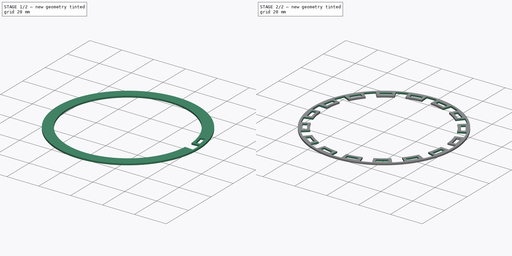
[diagram: build sequence overview — one tinted view per stage of 2, left to right]
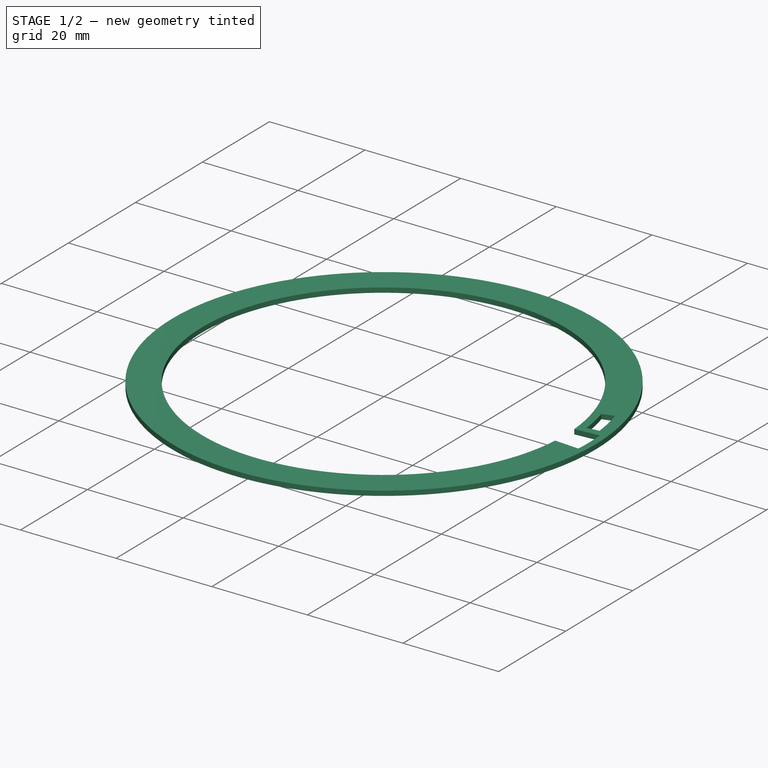
[diagram: stage 1 of 2 — iso view after this stage's code; geometry added in this stage tinted green]
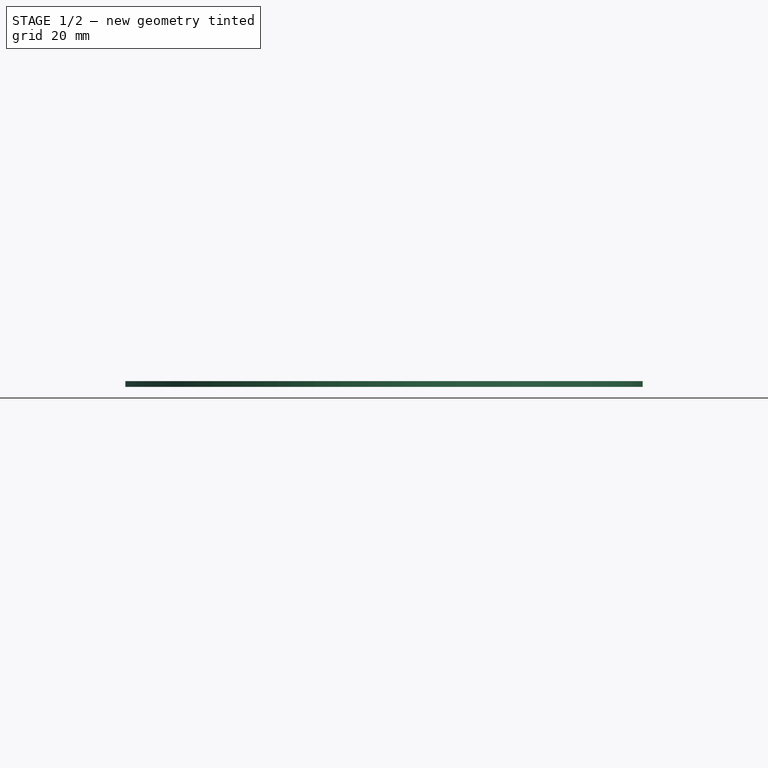
[diagram: stage 1 of 2 — front view after this stage's code; geometry added in this stage tinted green]
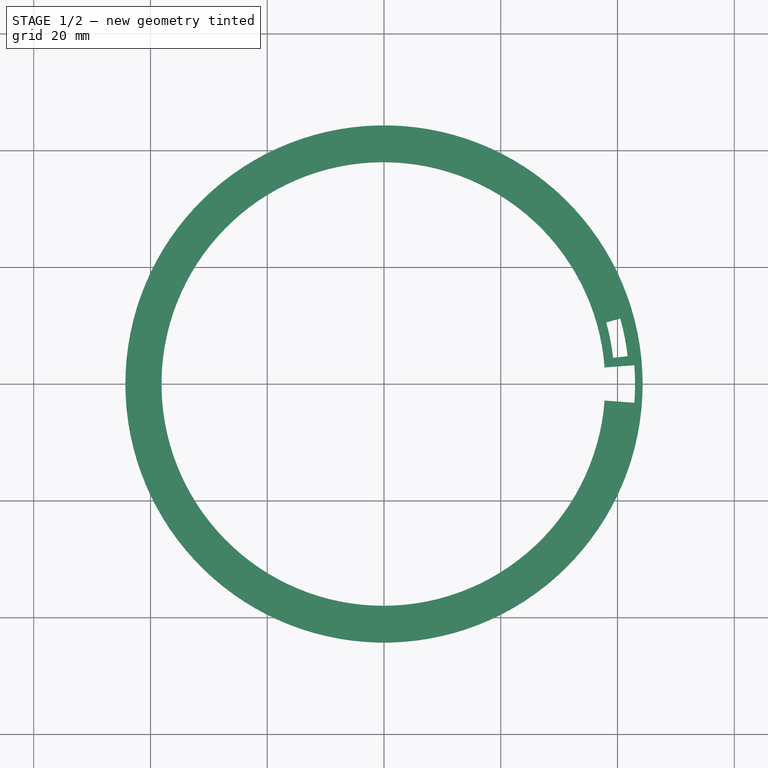
[diagram: stage 1 of 2 — top view after this stage's code; geometry added in this stage tinted green]
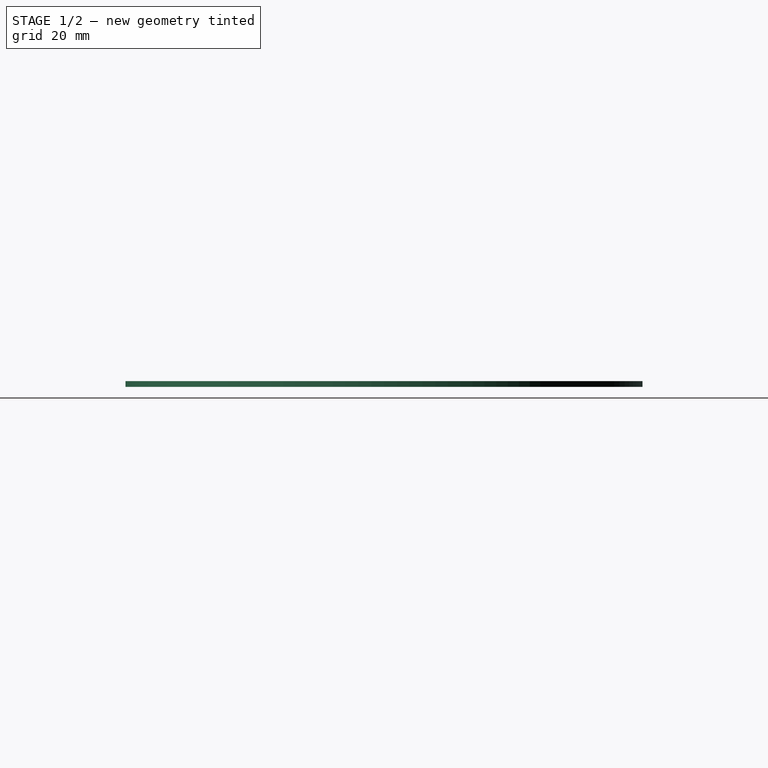
[diagram: stage 1 of 2 — right view after this stage's code; geometry added in this stage tinted green]
FCSTD DOCUMENT  (FreeCAD 0.16R6705 (Git))
Label: BearingCage6_43
License: All rights reserved
LicenseURL: http://en.wikipedia.org/wiki/All_rights_reserved
objects: Sketcher::SketchObject×2, PartDesign::Pad×1, PartDesign::Pocket×1, PartDesign::PolarPattern×1
note: 7 computed .brp shape members not serialized (recipe doc carries the construction recipe); baked Part::Feature solids carry a one-line shape summary decoded from their .brp

FEATURE [Sketcher::SketchObject] Sketch
  sketch-geometry (3):
    g0: Circle CenterX=0 CenterY=0 CenterZ=0 NormalX=0 NormalY=0 NormalZ=1 Radius=44.3
    g1: Circle CenterX=-0.109724 CenterY=0 CenterZ=0 NormalX=0 NormalY=0 NormalZ=1 Radius=38
    g2: Circle [constr] CenterX=0 CenterY=0 CenterZ=0 NormalX=0 NormalY=0 NormalZ=1 Radius=40
  constraints (5):
    c: Coincident(g0,g-1)
    c: Radius(g0) = 44.3
    c: Radius(g1) = 38
    c: Coincident(g2,g-1)
    c: Radius(g2) = 40
FEATURE [PartDesign::Pad] Pad
  Length = 1
  Length2 = 100
  Sketch = -> Sketch
  Type = 0
FEATURE [Sketcher::SketchObject] Sketch001
  Placement = pos=(0,0,1) rot=(0,0,1;0rad)
  Support = -> Pad [Face4]
  sketch-geometry (14):
    g0: Circle [constr] CenterX=0 CenterY=0 CenterZ=0 NormalX=0 NormalY=0 NormalZ=1 Radius=44.3
    g1: Circle [constr] CenterX=0 CenterY=0 CenterZ=0 NormalX=0 NormalY=0 NormalZ=1 Radius=37
    g2: Circle [constr] CenterX=0 CenterY=0 CenterZ=0 NormalX=0 NormalY=0 NormalZ=1 Radius=40
    g3: Circle [constr] CenterX=40 CenterY=0 CenterZ=0 NormalX=0 NormalY=0 NormalZ=1 Radius=3
    g4: ArcOfCircle CenterX=0 CenterY=0 CenterZ=0 NormalX=0 NormalY=0 NormalZ=1 Radius=43 StartAngle=6.20811 EndAngle=6.35826
    g5: LineSegment StartX=0 StartY=0 StartZ=0 EndX=42.8789 EndY=3.225 EndZ=0
    g6: LineSegment StartX=0 StartY=0 StartZ=0 EndX=42.8789 EndY=-3.225 EndZ=0
    g7: ArcOfCircle CenterX=0 CenterY=0 CenterZ=0 NormalX=0 NormalY=0 NormalZ=1 Radius=42 StartAngle=0.113446 EndAngle=0.270526
    g8: ArcOfCircle CenterX=0 CenterY=0 CenterZ=0 NormalX=0 NormalY=0 NormalZ=1 Radius=39.5 StartAngle=0.113446 EndAngle=0.270526
    g9: LineSegment StartX=40.4725 StartY=11.224 StartZ=0 EndX=38.0634 EndY=10.5559 EndZ=0
    g10: LineSegment StartX=41.73 StartY=4.75453 StartZ=0 EndX=39.2461 EndY=4.47153 EndZ=0
    g11: LineSegment [constr] StartX=0 StartY=0 StartZ=0 EndX=39.2461 EndY=4.47153 EndZ=0
    g12: LineSegment [constr] StartX=0 StartY=0 StartZ=0 EndX=38.0634 EndY=10.5559 EndZ=0
    g13: LineSegment [constr] StartX=0 StartY=0 StartZ=0 EndX=38.7743 EndY=7.53696 EndZ=0
  constraints (38):
    c: Coincident(g0,g-1)
    c: Radius(g0) = 44.3
    c: Radius(g1) = 37
    c: Coincident(g2,g-1)
    c: Radius(g2) = 40
    c: PointOnObject(g3,g2)
    c: Radius(g3) = 3
    c: Coincident(g4,g-1)
    c: Tangent(g4,g3)
    c: Coincident(g5,g-1)
    c: Coincident(g5,g4)
    c: Coincident(g6,g-1)
    c: Coincident(g6,g4)
    c: Tangent(g6,g3)
    c: Tangent(g3,g5)
    c: PointOnObject(g3,g-1)
    c: Coincident(g1,g-1)
    c: Coincident(g7,g-1)
    c: Coincident(g8,g-1)
    c: Coincident(g9,g7)
    c: Coincident(g10,g7)
    c: Coincident(g10,g8)
    c: Coincident(g11,g-1)
    c: Coincident(g11,g8)
    c: Coincident(g12,g-1)
    c: Coincident(g12,g8)
    c: Parallel(g12,g9)
    c: Parallel(g11,g10)
    c: Coincident(g8,g9)
    c: Radius(g7) = 42
    c: Radius(g8) = 39.5
    c: Angle(g11,g12) = 0.15708
    c: Coincident(g13,g-1)
    c: PointOnObject(g13,g8)
    c: Distance(g13,g8) = 3.10153
    c: Distance(g13,g8) = 3.10153
    c: Angle(g-1,g13) = 0.191986
    c: Angle(g11,g13) = 0.0785398
FEATURE [PartDesign::Pocket] Pocket
  Length = 5
  Sketch = -> Sketch001
  Type = 1
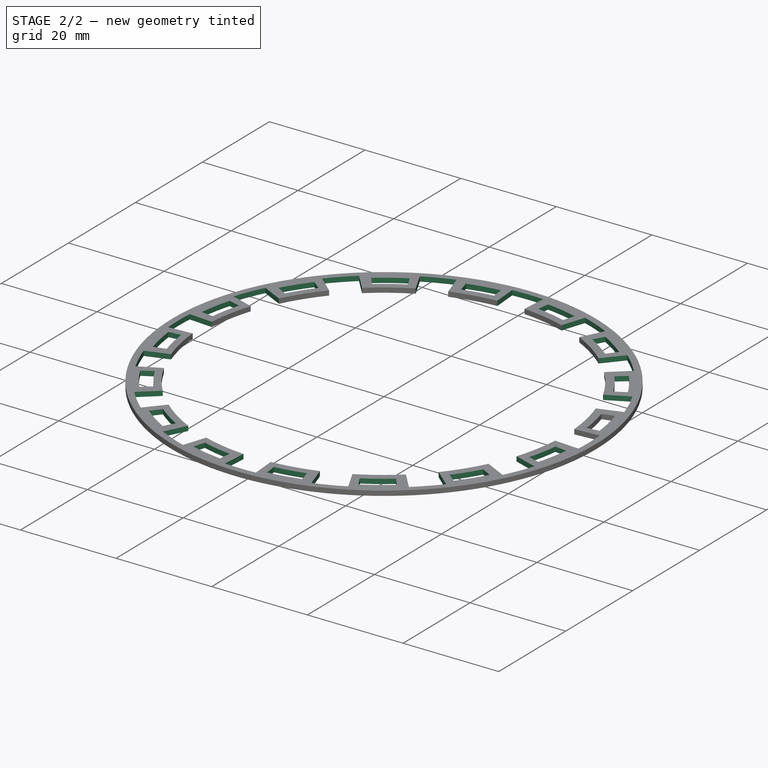
[diagram: stage 2 of 2 — iso view after this stage's code; geometry added in this stage tinted green]
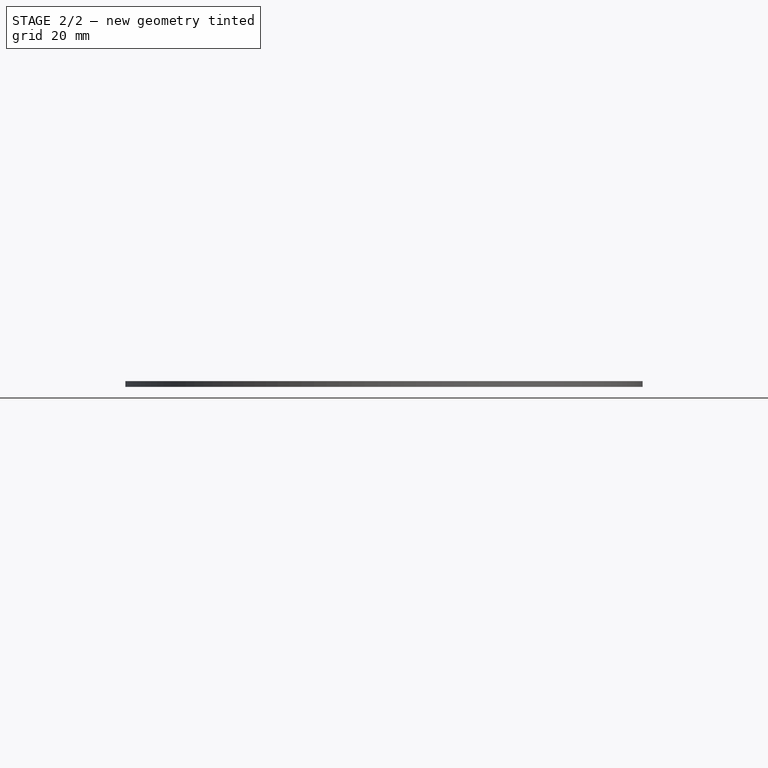
[diagram: stage 2 of 2 — front view after this stage's code; geometry added in this stage tinted green]
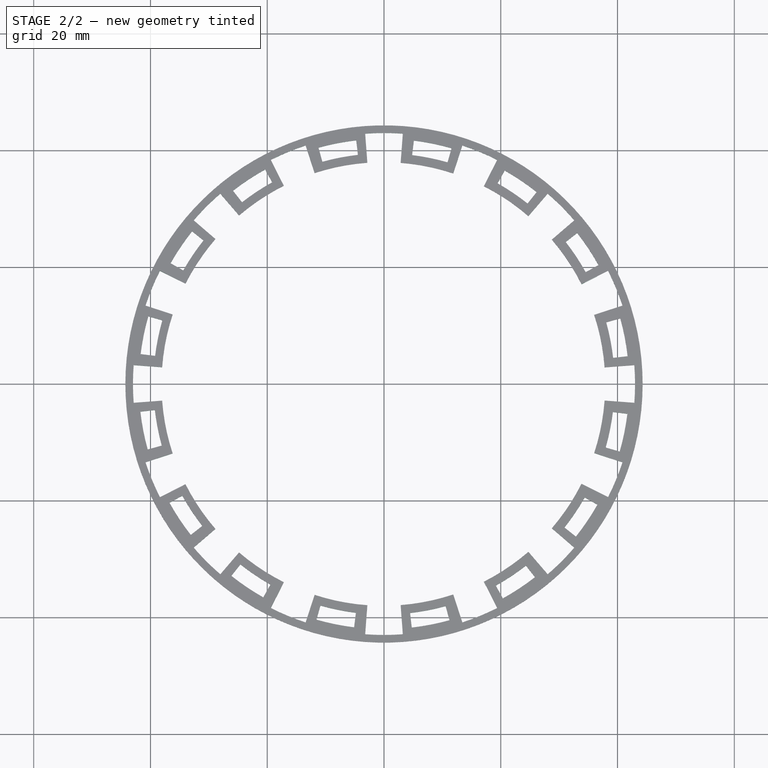
[diagram: stage 2 of 2 — top view after this stage's code; geometry added in this stage tinted green]
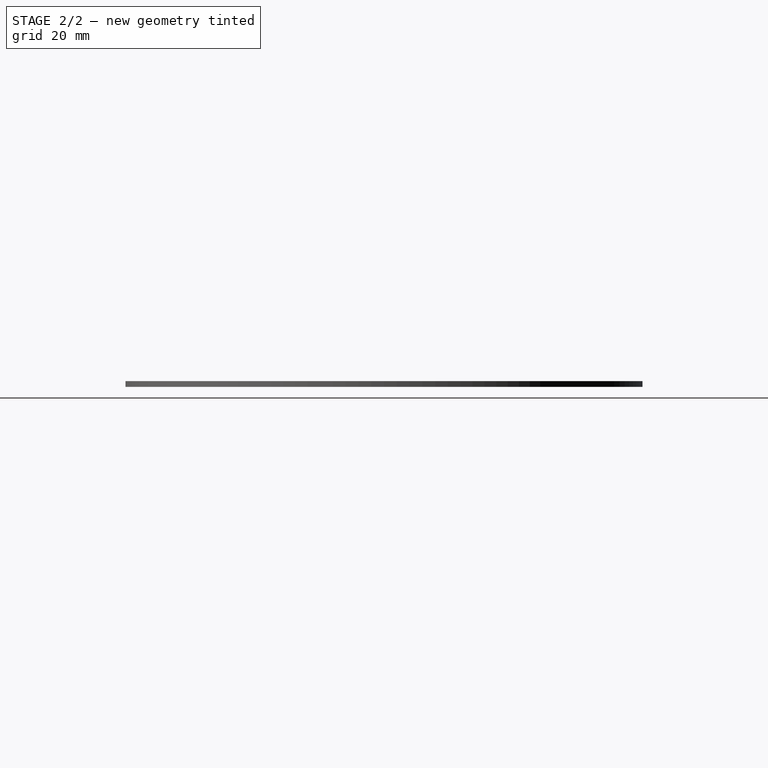
[diagram: stage 2 of 2 — right view after this stage's code; geometry added in this stage tinted green]
FEATURE [PartDesign::PolarPattern] PolarPattern
  Angle = 360
  Axis = -> Sketch001 [N_Axis]
  Occurrences = 16
  Originals = -> [Pocket]
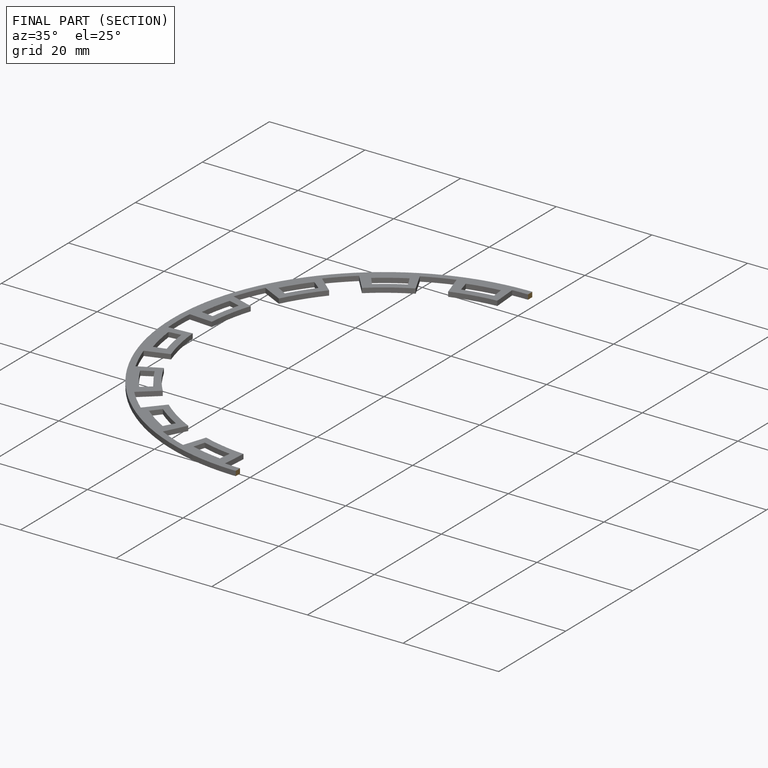
[diagram: finished part — half-section view (interior)]
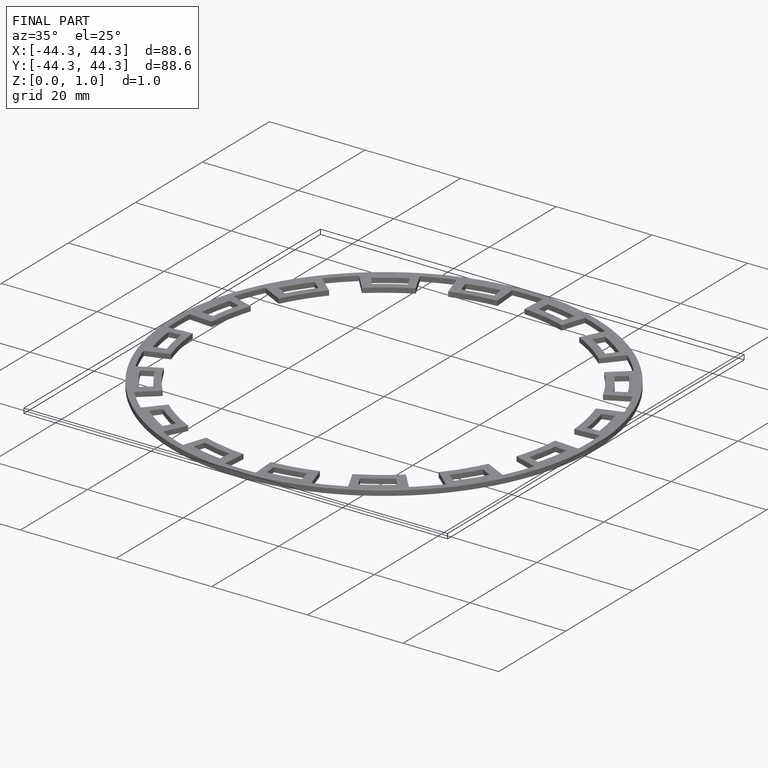
[diagram: finished part — iso view with bounding-box wireframe]
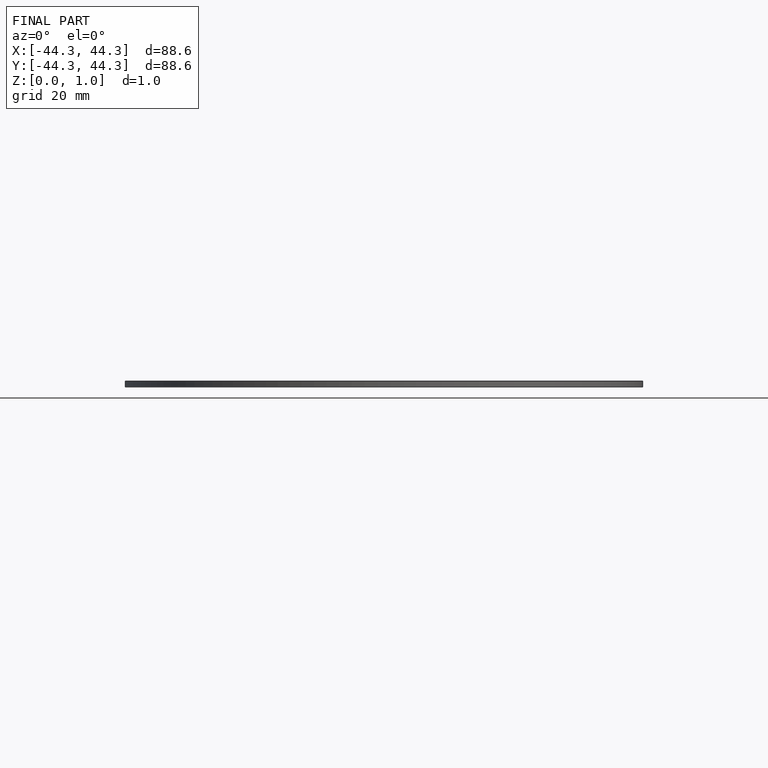
[diagram: finished part — front view with bounding-box wireframe]
